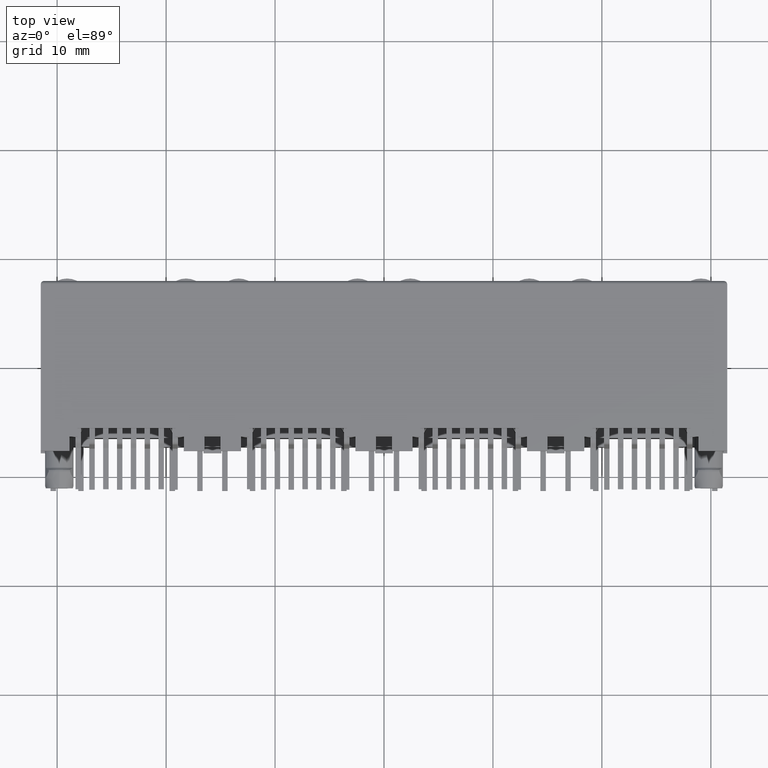
[diagram: clean part render]
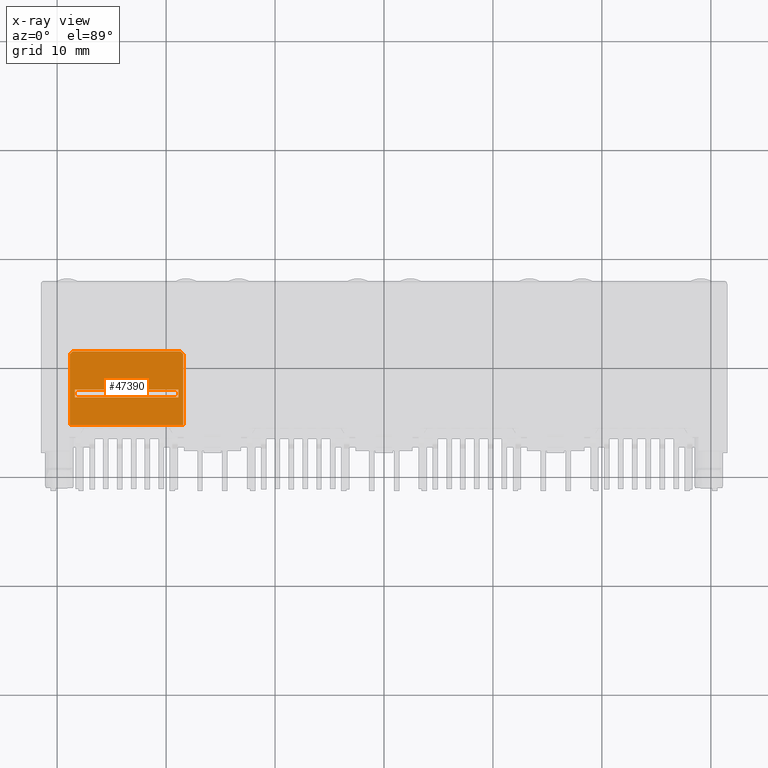
[diagram: x-ray — body ghosted, one internal face saturated and labeled with its STEP entity id]
A machine part, top view, then the same camera in x-ray: the body is ghosted and one INTERNAL B-rep face — a face not visible from any outside direction — is saturated and labeled: STEP entity #47390.
In plain terms, the highlighted planar face has unit normal (0, 0, 1).
Its self-contained STEP definition (entity closure, byte-faithful):
#1634 = VERTEX_POINT ( 'NONE', #49871 ) ;
#1872 = CARTESIAN_POINT ( 'NONE',  ( -18.87500000000000000, -2.174999999999999800, 5.649999999999999500 ) ) ;
#2084 = CARTESIAN_POINT ( 'NONE',  ( -28.37500000000000000, -2.174999999999999800, 5.649999999999999500 ) ) ;
#2089 = CARTESIAN_POINT ( 'NONE',  ( -28.37500000000000000, -2.094440653744999500, 5.649999999999999500 ) ) ;
#2222 = DIRECTION ( 'NONE',  ( -1.000000000000000000, -0.0000000000000000000, -0.0000000000000000000 ) ) ;
#3417 = PLANE ( 'NONE',  #41251 ) ;
#3768 = VECTOR ( 'NONE', #59529, 1000.000000000000000 ) ;
#5585 = LINE ( 'NONE', #56257, #51430 ) ;
#5993 = LINE ( 'NONE', #55034, #60278 ) ;
#7177 = LINE ( 'NONE', #53623, #3768 ) ;
#7486 = ORIENTED_EDGE ( 'NONE', *, *, #27110, .F. ) ;
#9882 = VECTOR ( 'NONE', #12008, 1000.000000000000000 ) ;
#10393 = VERTEX_POINT ( 'NONE', #19715 ) ;
#10813 = VECTOR ( 'NONE', #27870, 1000.000000000000000 ) ;
#11877 = EDGE_CURVE ( 'NONE', #48642, #47423, #7177, .T. ) ;
#12008 = DIRECTION ( 'NONE',  ( 0.0000000000000000000, -1.000000000000000000, 0.0000000000000000000 ) ) ;
#13891 = CARTESIAN_POINT ( 'NONE',  ( -18.87500000000000000, -2.874999999999999100, 5.649999999999999500 ) ) ;
#14128 = CARTESIAN_POINT ( 'NONE',  ( -28.37500000000000000, -2.874999999999999600, 5.649999999999999500 ) ) ;
#15038 = FACE_BOUND ( 'NONE', #38209, .T. ) ;
#15896 = LINE ( 'NONE', #27627, #10813 ) ;
#16478 = LINE ( 'NONE', #45779, #69093 ) ;
#16665 = FACE_OUTER_BOUND ( 'NONE', #31841, .T. ) ;
#18570 = CARTESIAN_POINT ( 'NONE',  ( -18.21700000000000200, -5.449999999999999300, 5.649999999999999500 ) ) ;
#18847 = CARTESIAN_POINT ( 'NONE',  ( -18.47700000000000000, 1.350000000000000100, 5.649999999999999500 ) ) ;
#19715 = CARTESIAN_POINT ( 'NONE',  ( -28.82499999999999600, -5.449999999999999300, 5.649999999999999500 ) ) ;
#20170 = ORIENTED_EDGE ( 'NONE', *, *, #60176, .T. ) ;
#20619 = EDGE_CURVE ( 'NONE', #46711, #48642, #68645, .T. ) ;
#20918 = EDGE_CURVE ( 'NONE', #62614, #22367, #59340, .T. ) ;
#22367 = VERTEX_POINT ( 'NONE', #1872 ) ;
#25015 = VERTEX_POINT ( 'NONE', #2084 ) ;
#26133 = DIRECTION ( 'NONE',  ( 0.0000000000000000000, -1.000000000000000000, 0.0000000000000000000 ) ) ;
#26142 = VERTEX_POINT ( 'NONE', #14128 ) ;
#26862 = CARTESIAN_POINT ( 'NONE',  ( -28.82499999999999900, 1.099999999995860300, 5.649999999999999500 ) ) ;
#27110 = EDGE_CURVE ( 'NONE', #22367, #25015, #16478, .T. ) ;
#27627 = CARTESIAN_POINT ( 'NONE',  ( -28.57500000000232300, 1.350000000002323300, 5.649999999999999500 ) ) ;
#27733 = DIRECTION ( 'NONE',  ( 0.0000000000000000000, 1.000000000000000000, -0.0000000000000000000 ) ) ;
#27870 = DIRECTION ( 'NONE',  ( -0.7071067811719824500, -0.7071067812011125900, 0.0000000000000000000 ) ) ;
#28041 = ORIENTED_EDGE ( 'NONE', *, *, #49800, .F. ) ;
#29733 = DIRECTION ( 'NONE',  ( 1.000000000000000000, -0.0000000000000000000, -0.0000000000000000000 ) ) ;
#30332 = EDGE_CURVE ( 'NONE', #47423, #10393, #67993, .T. ) ;
#30781 = ORIENTED_EDGE ( 'NONE', *, *, #64840, .F. ) ;
#31359 = CARTESIAN_POINT ( 'NONE',  ( -29.08500000000000100, 6.963999999999999500, 5.649999999999999500 ) ) ;
#31841 = EDGE_LOOP ( 'NONE', ( #30781, #53534, #28041, #64741, #61800, #46607 ) ) ;
#33633 = CARTESIAN_POINT ( 'NONE',  ( -18.73196406001999700, 1.406964060026999700, 5.649999999999998600 ) ) ;
#33792 = CARTESIAN_POINT ( 'NONE',  ( -18.42500000000000100, 1.099999999995018500, 5.649999999999999500 ) ) ;
#38209 = EDGE_LOOP ( 'NONE', ( #20170, #57630, #7486, #66304 ) ) ;
#40435 = VECTOR ( 'NONE', #29733, 1000.000000000000000 ) ;
#41251 = AXIS2_PLACEMENT_3D ( 'NONE', #31359, #57955, #26133 ) ;
#44257 = CARTESIAN_POINT ( 'NONE',  ( -18.67499999999535000, 1.350000000000007600, 5.649999999999999500 ) ) ;
#44306 = DIRECTION ( 'NONE',  ( 0.7071067811719705700, -0.7071067812011243600, 0.0000000000000000000 ) ) ;
#45734 = VECTOR ( 'NONE', #44306, 1000.000000000000100 ) ;
#45779 = CARTESIAN_POINT ( 'NONE',  ( -18.68500000000000200, -2.174999999999999800, 5.649999999999999500 ) ) ;
#46607 = ORIENTED_EDGE ( 'NONE', *, *, #20619, .F. ) ;
#46711 = VERTEX_POINT ( 'NONE', #44257 ) ;
#47023 = VERTEX_POINT ( 'NONE', #26862 ) ;
#47390 = ADVANCED_FACE ( 'NONE', ( #15038, #16665 ), #3417, .T. ) ;
#47423 = VERTEX_POINT ( 'NONE', #52481 ) ;
#48642 = VERTEX_POINT ( 'NONE', #33792 ) ;
#49800 = EDGE_CURVE ( 'NONE', #10393, #47023, #5993, .T. ) ;
#49871 = CARTESIAN_POINT ( 'NONE',  ( -28.57500000000456500, 1.350000000000082500, 5.649999999999999500 ) ) ;
#51430 = VECTOR ( 'NONE', #2222, 1000.000000000000000 ) ;
#52481 = CARTESIAN_POINT ( 'NONE',  ( -18.42500000000000100, -5.449999999999999300, 5.649999999999999500 ) ) ;
#53534 = ORIENTED_EDGE ( 'NONE', *, *, #67428, .T. ) ;
#53623 = CARTESIAN_POINT ( 'NONE',  ( -18.42500000000000100, 1.236000000000000200, 5.649999999999999500 ) ) ;
#55034 = CARTESIAN_POINT ( 'NONE',  ( -28.82499999999999900, -5.836000000000000300, 5.649999999999999500 ) ) ;
#55756 = DIRECTION ( 'NONE',  ( -1.000000000000000000, 0.0000000000000000000, 0.0000000000000000000 ) ) ;
#55824 = DIRECTION ( 'NONE',  ( -1.000000000000000000, 0.0000000000000000000, 0.0000000000000000000 ) ) ;
#56257 = CARTESIAN_POINT ( 'NONE',  ( -28.56499999999999800, -2.874999999999999600, 5.649999999999999500 ) ) ;
#57630 = ORIENTED_EDGE ( 'NONE', *, *, #69777, .F. ) ;
#57955 = DIRECTION ( 'NONE',  ( -0.0000000000000000000, 0.0000000000000000000, 1.000000000000000000 ) ) ;
#59340 = LINE ( 'NONE', #62993, #70350 ) ;
#59529 = DIRECTION ( 'NONE',  ( 0.0000000000000000000, -1.000000000000000000, 0.0000000000000000000 ) ) ;
#60176 = EDGE_CURVE ( 'NONE', #62614, #26142, #5585, .T. ) ;
#60278 = VECTOR ( 'NONE', #27733, 1000.000000000000000 ) ;
#61800 = ORIENTED_EDGE ( 'NONE', *, *, #11877, .F. ) ;
#62614 = VERTEX_POINT ( 'NONE', #13891 ) ;
#62993 = CARTESIAN_POINT ( 'NONE',  ( -18.87500000000000000, -2.955559346254999800, 5.649999999999999500 ) ) ;
#64741 = ORIENTED_EDGE ( 'NONE', *, *, #30332, .F. ) ;
#64840 = EDGE_CURVE ( 'NONE', #1634, #46711, #66704, .T. ) ;
#66304 = ORIENTED_EDGE ( 'NONE', *, *, #20918, .F. ) ;
#66704 = LINE ( 'NONE', #18847, #40435 ) ;
#67428 = EDGE_CURVE ( 'NONE', #1634, #47023, #15896, .T. ) ;
#67581 = LINE ( 'NONE', #2089, #9882 ) ;
#67993 = LINE ( 'NONE', #18570, #69712 ) ;
#68645 = LINE ( 'NONE', #33633, #45734 ) ;
#68924 = DIRECTION ( 'NONE',  ( 0.0000000000000000000, 1.000000000000000000, 0.0000000000000000000 ) ) ;
#69093 = VECTOR ( 'NONE', #55756, 1000.000000000000000 ) ;
#69712 = VECTOR ( 'NONE', #55824, 1000.000000000000000 ) ;
#69777 = EDGE_CURVE ( 'NONE', #25015, #26142, #67581, .T. ) ;
#70350 = VECTOR ( 'NONE', #68924, 1000.000000000000000 ) ;